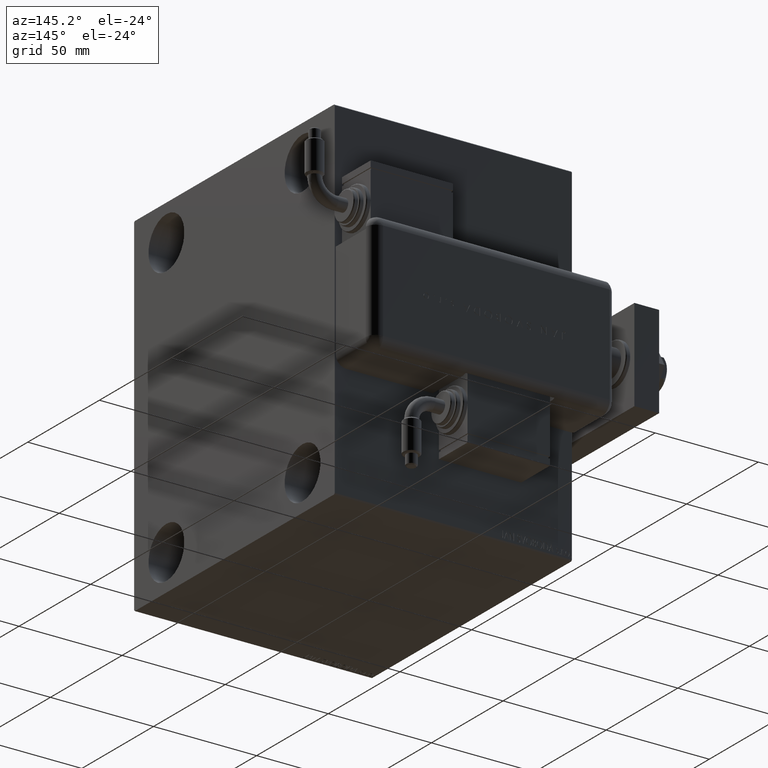
[diagram: clean part render]
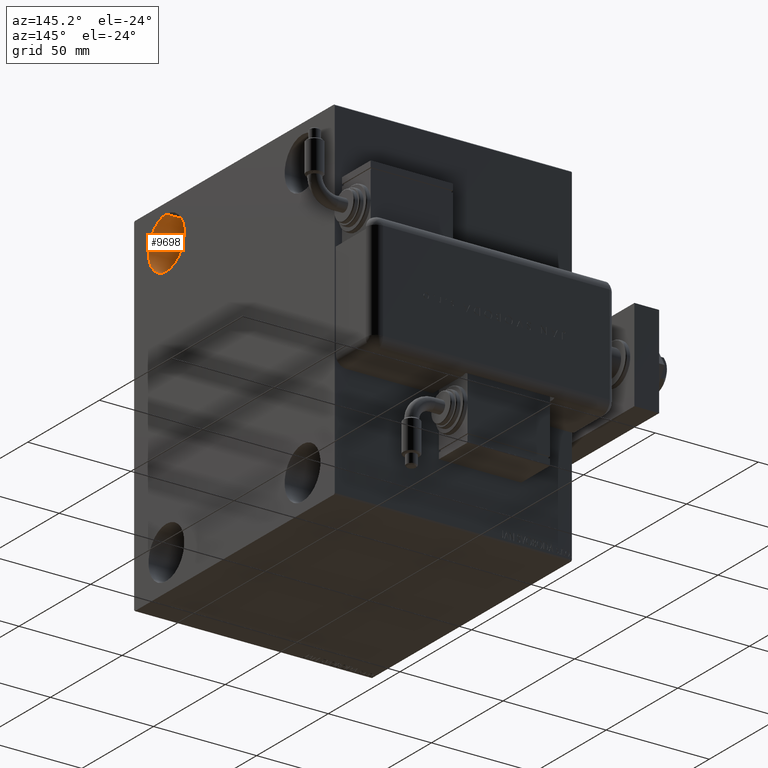
[diagram: same view with one face highlighted and labeled with its STEP entity id]
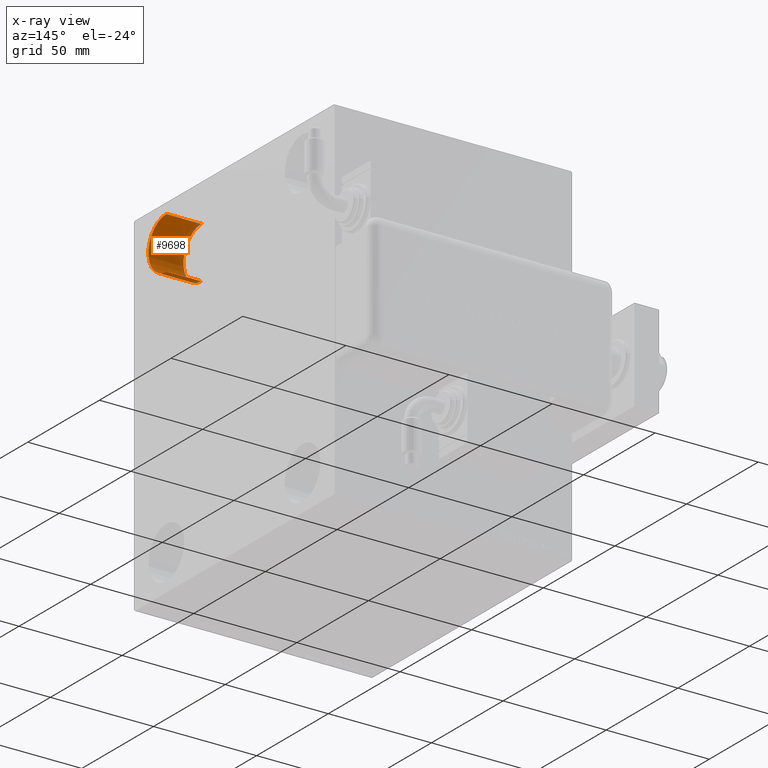
[diagram: x-ray of the same camera — body ghosted, the highlighted face saturated]
A machine part, auxiliary view. The second image highlights one B-rep face of the part: STEP entity #9698.
The next image is the same camera in x-ray: the body ghosted, the highlighted face saturated — about 11% of this face is hidden behind the body in this view.
In plain terms, the highlighted cylindrical surface (edge-blend (fillet) strip) has radius 12.5 mm, axis along (1, 0, 0).
Its self-contained STEP definition (entity closure, byte-faithful):
#307 = CARTESIAN_POINT ( 'NONE',  ( 115.0000000000000000, -47.49999999999997868, 80.00000000000001421 ) ) ;
#1447 = DIRECTION ( 'NONE',  ( 1.000000000000000000, -0.000000000000000000, -0.000000000000000000 ) ) ;
#6228 = VECTOR ( 'NONE', #35572, 1000.000000000000000 ) ;
#7250 = CIRCLE ( 'NONE', #52693, 12.50000000000001066 ) ;
#9698 = ADVANCED_FACE ( 'NONE', ( #57819 ), #53161, .F. ) ;
#10452 = AXIS2_PLACEMENT_3D ( 'NONE', #38709, #56683, #42440 ) ;
#10742 = DIRECTION ( 'NONE',  ( -1.000000000000000000, -0.000000000000000000, -0.000000000000000000 ) ) ;
#14083 = ORIENTED_EDGE ( 'NONE', *, *, #30113, .F. ) ;
#14132 = CARTESIAN_POINT ( 'NONE',  ( 115.0000000000000000, -47.49999999999997868, 55.00000000000000000 ) ) ;
#14999 = LINE ( 'NONE', #33567, #26986 ) ;
#16710 = CARTESIAN_POINT ( 'NONE',  ( 98.00000000000000000, -47.49999999999997868, 55.00000000000000000 ) ) ;
#18513 = CARTESIAN_POINT ( 'NONE',  ( 115.0000000000000000, -47.49999999999997868, 67.50000000000000000 ) ) ;
#18568 = ORIENTED_EDGE ( 'NONE', *, *, #50059, .T. ) ;
#25003 = CARTESIAN_POINT ( 'NONE',  ( 98.00000000000000000, -47.49999999999997868, 67.50000000000000000 ) ) ;
#26986 = VECTOR ( 'NONE', #43767, 1000.000000000000000 ) ;
#27568 = VERTEX_POINT ( 'NONE', #307 ) ;
#29649 = AXIS2_PLACEMENT_3D ( 'NONE', #25003, #1447, #40750 ) ;
#30113 = EDGE_CURVE ( 'NONE', #41053, #27568, #7250, .T. ) ;
#31039 = EDGE_CURVE ( 'NONE', #49820, #41053, #34355, .T. ) ;
#33567 = CARTESIAN_POINT ( 'NONE',  ( 98.00000000000000000, -47.49999999999997868, 80.00000000000001421 ) ) ;
#33947 = CARTESIAN_POINT ( 'NONE',  ( 98.00000000000000000, -47.49999999999997868, 55.00000000000000000 ) ) ;
#34355 = LINE ( 'NONE', #16710, #6228 ) ;
#35572 = DIRECTION ( 'NONE',  ( 1.000000000000000000, -0.000000000000000000, -0.000000000000000000 ) ) ;
#38709 = CARTESIAN_POINT ( 'NONE',  ( 98.00000000000000000, -47.49999999999997868, 67.50000000000000000 ) ) ;
#39445 = EDGE_LOOP ( 'NONE', ( #57411, #18568, #14083, #47657 ) ) ;
#39917 = CARTESIAN_POINT ( 'NONE',  ( 98.00000000000000000, -47.49999999999997868, 80.00000000000001421 ) ) ;
#40750 = DIRECTION ( 'NONE',  ( 0.000000000000000000, 0.000000000000000000, -1.000000000000000000 ) ) ;
#41053 = VERTEX_POINT ( 'NONE', #14132 ) ;
#42440 = DIRECTION ( 'NONE',  ( 0.000000000000000000, 0.000000000000000000, 1.000000000000000000 ) ) ;
#43767 = DIRECTION ( 'NONE',  ( 1.000000000000000000, -0.000000000000000000, -0.000000000000000000 ) ) ;
#47238 = VERTEX_POINT ( 'NONE', #39917 ) ;
#47657 = ORIENTED_EDGE ( 'NONE', *, *, #31039, .F. ) ;
#47885 = DIRECTION ( 'NONE',  ( 0.000000000000000000, 0.000000000000000000, 1.000000000000000000 ) ) ;
#49820 = VERTEX_POINT ( 'NONE', #33947 ) ;
#50059 = EDGE_CURVE ( 'NONE', #47238, #27568, #14999, .T. ) ;
#50962 = CIRCLE ( 'NONE', #10452, 12.50000000000001066 ) ;
#52693 = AXIS2_PLACEMENT_3D ( 'NONE', #18513, #10742, #47885 ) ;
#53161 = CYLINDRICAL_SURFACE ( 'NONE', #29649, 12.50000000000000355 ) ;
#56683 = DIRECTION ( 'NONE',  ( -1.000000000000000000, -0.000000000000000000, -0.000000000000000000 ) ) ;
#57411 = ORIENTED_EDGE ( 'NONE', *, *, #60438, .T. ) ;
#57819 = FACE_OUTER_BOUND ( 'NONE', #39445, .T. ) ;
#60438 = EDGE_CURVE ( 'NONE', #49820, #47238, #50962, .T. ) ;